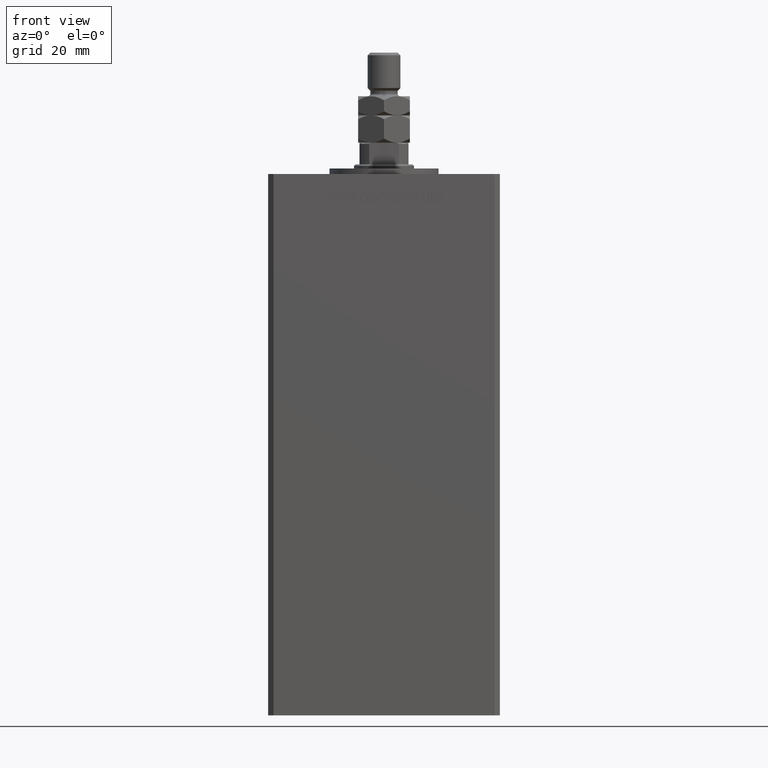
[diagram: clean part render]
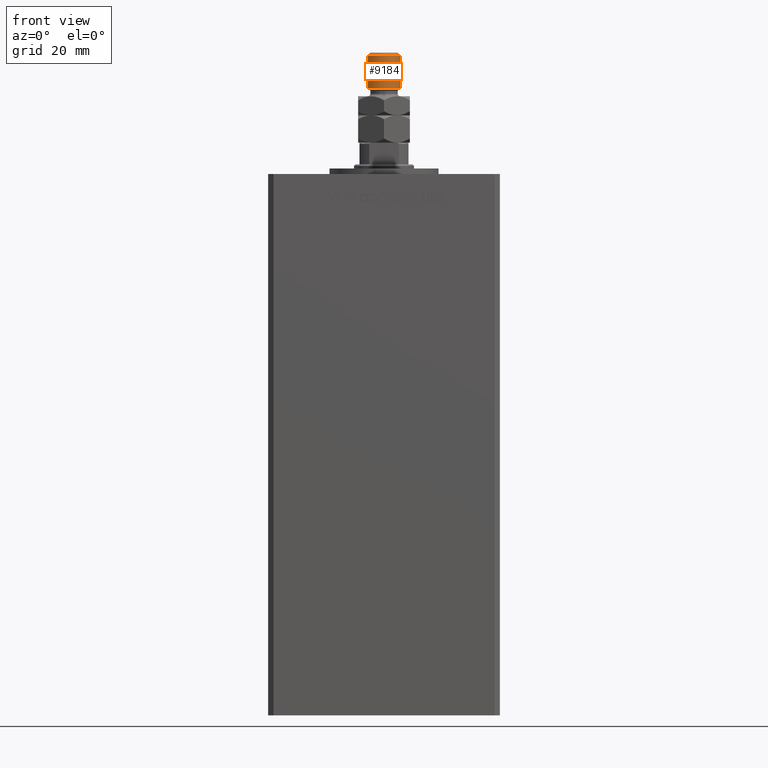
[diagram: same view with one face highlighted and labeled with its STEP entity id]
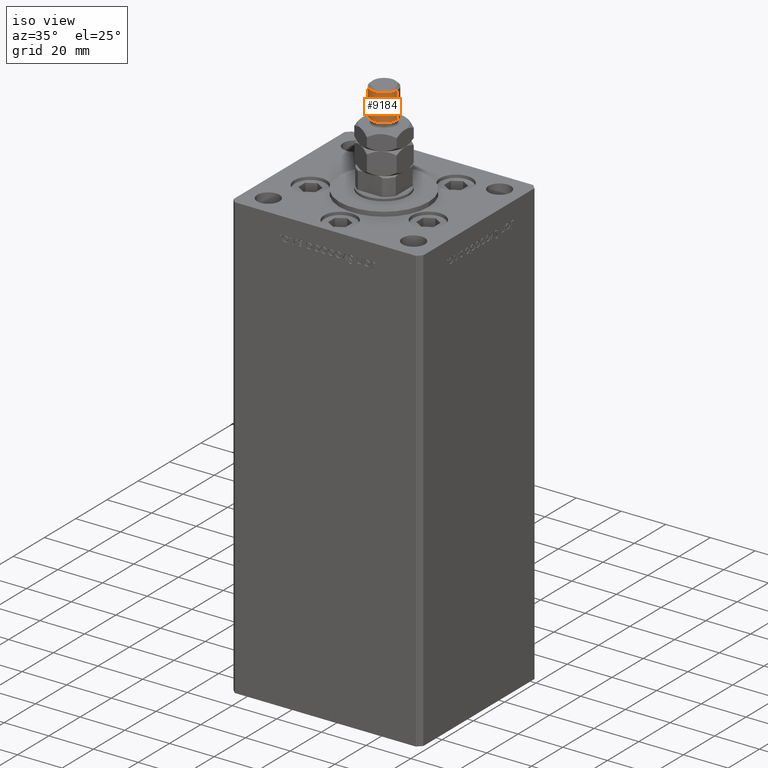
[diagram: same view with one face highlighted and labeled with its STEP entity id]
A machine part, front view. The second image highlights one B-rep face of the part: STEP entity #9184.
A second angle (iso view) of the same face is appended — the face is thin or edge-on in the first view.
In plain terms, the highlighted cylindrical surface (edge-blend (fillet) strip) has radius 6 mm, axis along (-0, -0, -1).
Its self-contained STEP definition (entity closure, byte-faithful):
#2564 = VECTOR ( 'NONE', #33201, 1000.000000000000000 ) ;
#2924 = EDGE_CURVE ( 'NONE', #51413, #11534, #36076, .T. ) ;
#3244 = CARTESIAN_POINT ( 'NONE',  ( 0.000000000000000000, 0.000000000000000000, 20.00000000000000711 ) ) ;
#4826 = AXIS2_PLACEMENT_3D ( 'NONE', #46137, #38273, #17619 ) ;
#4879 = FACE_OUTER_BOUND ( 'NONE', #41091, .T. ) ;
#9184 = ADVANCED_FACE ( 'NONE', ( #4879 ), #29625, .T. ) ;
#9344 = AXIS2_PLACEMENT_3D ( 'NONE', #51064, #42915, #34246 ) ;
#11534 = VERTEX_POINT ( 'NONE', #50827 ) ;
#13948 = CARTESIAN_POINT ( 'NONE',  ( 6.000000000000000888, 7.347880794884120722E-16, 32.00000000000000000 ) ) ;
#16973 = ORIENTED_EDGE ( 'NONE', *, *, #49659, .F. ) ;
#17384 = ORIENTED_EDGE ( 'NONE', *, *, #2924, .T. ) ;
#17619 = DIRECTION ( 'NONE',  ( 1.000000000000000000, 0.000000000000000000, 0.000000000000000000 ) ) ;
#19870 = LINE ( 'NONE', #31842, #20223 ) ;
#20223 = VECTOR ( 'NONE', #36164, 1000.000000000000000 ) ;
#20964 = LINE ( 'NONE', #50003, #2564 ) ;
#23363 = VERTEX_POINT ( 'NONE', #52939 ) ;
#29625 = CYLINDRICAL_SURFACE ( 'NONE', #9344, 6.000000000000000888 ) ;
#30291 = CIRCLE ( 'NONE', #33743, 6.000000000000000888 ) ;
#31842 = CARTESIAN_POINT ( 'NONE',  ( -6.000000000000000888, 0.000000000000000000, 33.00000000000000000 ) ) ;
#32076 = DIRECTION ( 'NONE',  ( -0.000000000000000000, -0.000000000000000000, 1.000000000000000000 ) ) ;
#33201 = DIRECTION ( 'NONE',  ( -0.000000000000000000, -0.000000000000000000, -1.000000000000000000 ) ) ;
#33306 = EDGE_CURVE ( 'NONE', #11534, #23363, #19870, .T. ) ;
#33743 = AXIS2_PLACEMENT_3D ( 'NONE', #3244, #32076, #52968 ) ;
#34246 = DIRECTION ( 'NONE',  ( -1.000000000000000000, 0.000000000000000000, 0.000000000000000000 ) ) ;
#34946 = CARTESIAN_POINT ( 'NONE',  ( 6.000000000000000888, 7.347880794884120722E-16, 20.00000000000000711 ) ) ;
#36076 = CIRCLE ( 'NONE', #4826, 6.000000000000000888 ) ;
#36164 = DIRECTION ( 'NONE',  ( -0.000000000000000000, -0.000000000000000000, -1.000000000000000000 ) ) ;
#37905 = ORIENTED_EDGE ( 'NONE', *, *, #33306, .T. ) ;
#38273 = DIRECTION ( 'NONE',  ( 0.000000000000000000, 0.000000000000000000, -1.000000000000000000 ) ) ;
#41091 = EDGE_LOOP ( 'NONE', ( #16973, #17384, #37905, #45947 ) ) ;
#42915 = DIRECTION ( 'NONE',  ( -0.000000000000000000, -0.000000000000000000, -1.000000000000000000 ) ) ;
#45947 = ORIENTED_EDGE ( 'NONE', *, *, #49063, .T. ) ;
#46137 = CARTESIAN_POINT ( 'NONE',  ( 0.000000000000000000, 0.000000000000000000, 32.00000000000000000 ) ) ;
#49063 = EDGE_CURVE ( 'NONE', #23363, #52443, #30291, .T. ) ;
#49659 = EDGE_CURVE ( 'NONE', #51413, #52443, #20964, .T. ) ;
#50003 = CARTESIAN_POINT ( 'NONE',  ( 6.000000000000000888, 7.347880794884120722E-16, 33.00000000000000000 ) ) ;
#50827 = CARTESIAN_POINT ( 'NONE',  ( -6.000000000000000888, 0.000000000000000000, 32.00000000000000000 ) ) ;
#51064 = CARTESIAN_POINT ( 'NONE',  ( 0.000000000000000000, 0.000000000000000000, 33.00000000000000000 ) ) ;
#51413 = VERTEX_POINT ( 'NONE', #13948 ) ;
#52443 = VERTEX_POINT ( 'NONE', #34946 ) ;
#52939 = CARTESIAN_POINT ( 'NONE',  ( -6.000000000000000888, 0.000000000000000000, 20.00000000000000711 ) ) ;
#52968 = DIRECTION ( 'NONE',  ( 1.000000000000000000, 0.000000000000000000, 0.000000000000000000 ) ) ;